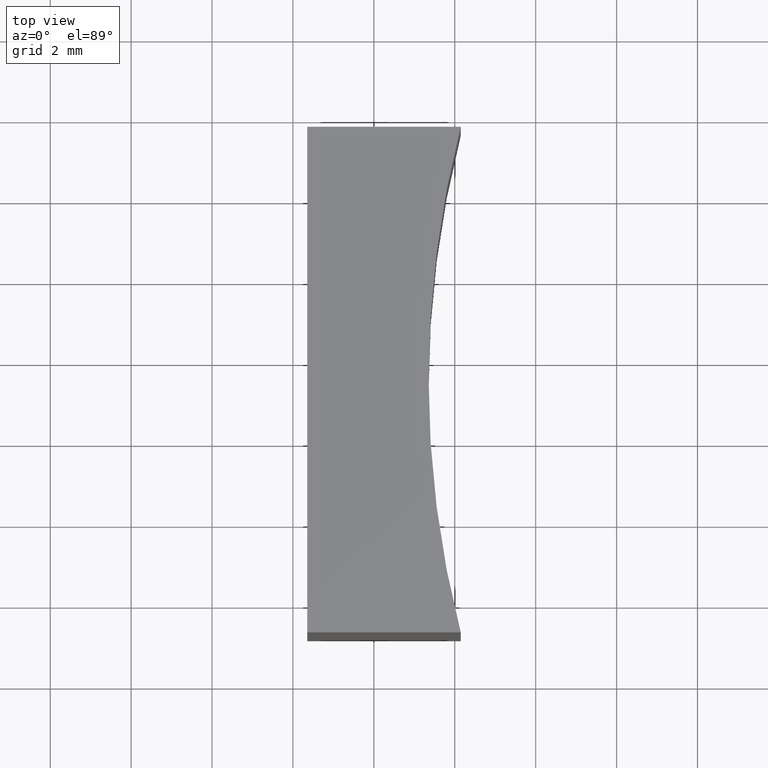
[diagram: clean part render]
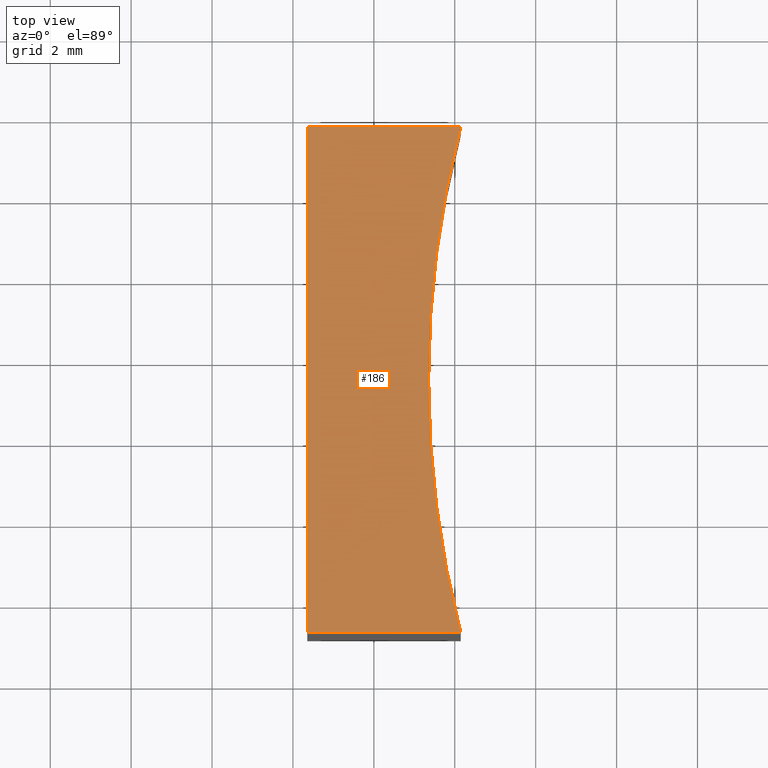
[diagram: same view with one face highlighted and labeled with its STEP entity id]
A machine part, top view. The second image highlights one B-rep face of the part: STEP entity #186.
In plain terms, the highlighted planar face has unit normal (0, 0, 1).
Its self-contained STEP definition (entity closure, byte-faithful):
#1 = VERTEX_POINT ( 'NONE', #205 ) ;
#3 = ORIENTED_EDGE ( 'NONE', *, *, #163, .T. ) ;
#7 = CARTESIAN_POINT ( 'NONE',  ( 146.1474219018447200, 27.17896463388354900, 12.50000000000000000 ) ) ;
#8 = EDGE_LOOP ( 'NONE', ( #152, #190, #146, #3, #221 ) ) ;
#9 = DIRECTION ( 'NONE',  ( -0.0000000000000000000, -1.000000000000000000, -0.0000000000000000000 ) ) ;
#11 = DIRECTION ( 'NONE',  ( 0.0000000000000000000, 0.0000000000000000000, 1.000000000000000000 ) ) ;
#26 = CARTESIAN_POINT ( 'NONE',  ( 170.3535678156410400, 33.42896463388354500, 12.50000000000000000 ) ) ;
#29 = CARTESIAN_POINT ( 'NONE',  ( 170.3535678156410400, 33.42896463388354500, 12.50000000000000000 ) ) ;
#36 = VERTEX_POINT ( 'NONE', #42 ) ;
#42 = CARTESIAN_POINT ( 'NONE',  ( 146.1474219018447200, 27.17896463388355200, 12.50000000000000000 ) ) ;
#45 = VERTEX_POINT ( 'NONE', #64 ) ;
#48 = CARTESIAN_POINT ( 'NONE',  ( 142.3535678156410400, 39.67896463388353800, 12.50000000000000000 ) ) ;
#52 = DIRECTION ( 'NONE',  ( -0.0000000000000000000, -0.0000000000000000000, -1.000000000000000000 ) ) ;
#62 = EDGE_CURVE ( 'NONE', #148, #36, #202, .T. ) ;
#64 = CARTESIAN_POINT ( 'NONE',  ( 146.1474219018447200, 39.67896463388353800, 12.50000000000000000 ) ) ;
#68 = CARTESIAN_POINT ( 'NONE',  ( 142.3535678156410400, 27.17896463388353800, 12.50000000000000000 ) ) ;
#78 = VECTOR ( 'NONE', #9, 1000.000000000000000 ) ;
#80 = EDGE_CURVE ( 'NONE', #36, #1, #143, .T. ) ;
#88 = DIRECTION ( 'NONE',  ( -1.000000000000000000, -0.0000000000000000000, -0.0000000000000000000 ) ) ;
#93 = DIRECTION ( 'NONE',  ( -0.0000000000000000000, -0.0000000000000000000, -1.000000000000000000 ) ) ;
#102 = VERTEX_POINT ( 'NONE', #214 ) ;
#103 = EDGE_CURVE ( 'NONE', #45, #102, #188, .T. ) ;
#115 = VECTOR ( 'NONE', #142, 1000.000000000000000 ) ;
#133 = DIRECTION ( 'NONE',  ( 1.000000000000000000, 0.0000000000000000000, -0.0000000000000000000 ) ) ;
#141 = AXIS2_PLACEMENT_3D ( 'NONE', #26, #11, #133 ) ;
#142 = DIRECTION ( 'NONE',  ( 1.000000000000000000, 2.743474213652739600E-015, -0.0000000000000000000 ) ) ;
#143 = CIRCLE ( 'NONE', #144, 24.99999999999996800 ) ;
#144 = AXIS2_PLACEMENT_3D ( 'NONE', #29, #52, #149 ) ;
#146 = ORIENTED_EDGE ( 'NONE', *, *, #80, .T. ) ;
#148 = VERTEX_POINT ( 'NONE', #68 ) ;
#149 = DIRECTION ( 'NONE',  ( 1.000000000000000000, 0.0000000000000000000, 0.0000000000000000000 ) ) ;
#151 = DIRECTION ( 'NONE',  ( 1.000000000000000000, 0.0000000000000000000, 0.0000000000000000000 ) ) ;
#152 = ORIENTED_EDGE ( 'NONE', *, *, #195, .T. ) ;
#153 = CARTESIAN_POINT ( 'NONE',  ( 142.3535678156410400, 27.17896463388353800, 12.50000000000000000 ) ) ;
#158 = LINE ( 'NONE', #153, #78 ) ;
#163 = EDGE_CURVE ( 'NONE', #1, #45, #226, .T. ) ;
#181 = FACE_OUTER_BOUND ( 'NONE', #8, .T. ) ;
#186 = ADVANCED_FACE ( 'NONE', ( #181 ), #209, .T. ) ;
#188 = LINE ( 'NONE', #48, #224 ) ;
#190 = ORIENTED_EDGE ( 'NONE', *, *, #62, .T. ) ;
#195 = EDGE_CURVE ( 'NONE', #102, #148, #158, .T. ) ;
#202 = LINE ( 'NONE', #7, #115 ) ;
#205 = CARTESIAN_POINT ( 'NONE',  ( 145.3535678156410700, 33.42896463388354500, 12.50000000000000000 ) ) ;
#209 = PLANE ( 'NONE',  #141 ) ;
#214 = CARTESIAN_POINT ( 'NONE',  ( 142.3535678156410400, 39.67896463388353800, 12.50000000000000000 ) ) ;
#217 = AXIS2_PLACEMENT_3D ( 'NONE', #235, #93, #151 ) ;
#221 = ORIENTED_EDGE ( 'NONE', *, *, #103, .T. ) ;
#224 = VECTOR ( 'NONE', #88, 1000.000000000000000 ) ;
#226 = CIRCLE ( 'NONE', #217, 24.99999999999996800 ) ;
#235 = CARTESIAN_POINT ( 'NONE',  ( 170.3535678156410400, 33.42896463388354500, 12.50000000000000000 ) ) ;